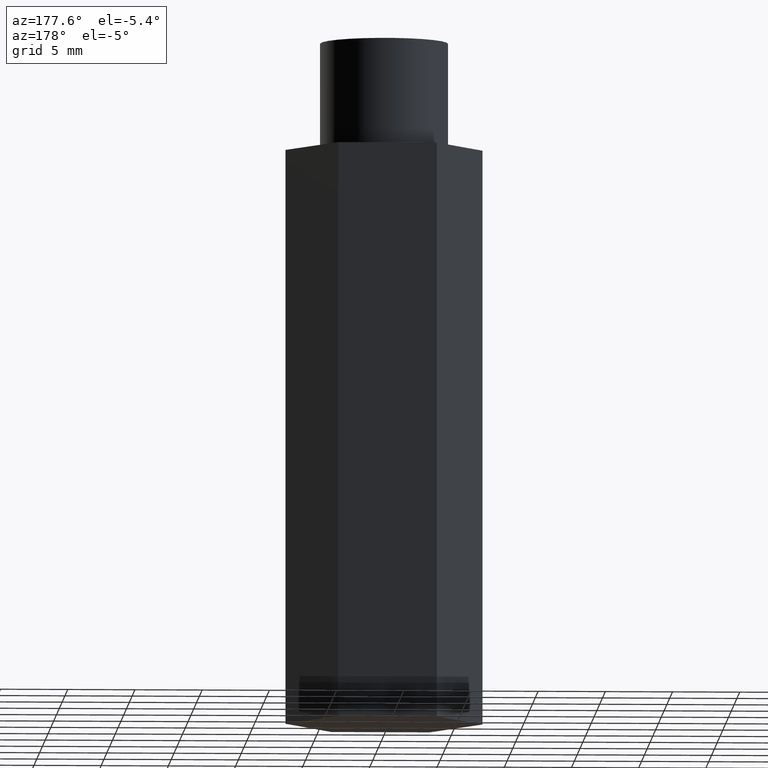
[diagram: clean part render]
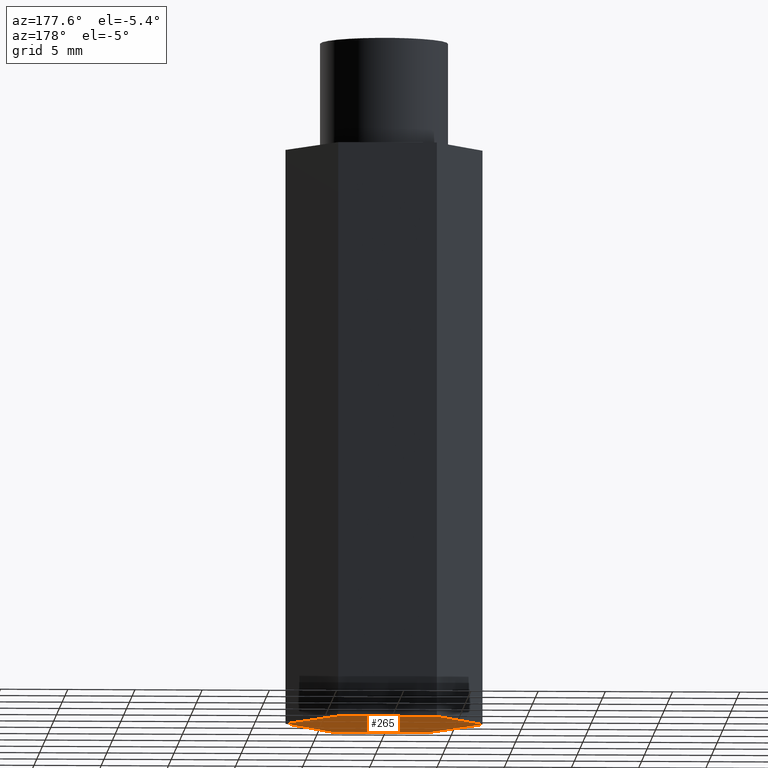
[diagram: same view with one face highlighted and labeled with its STEP entity id]
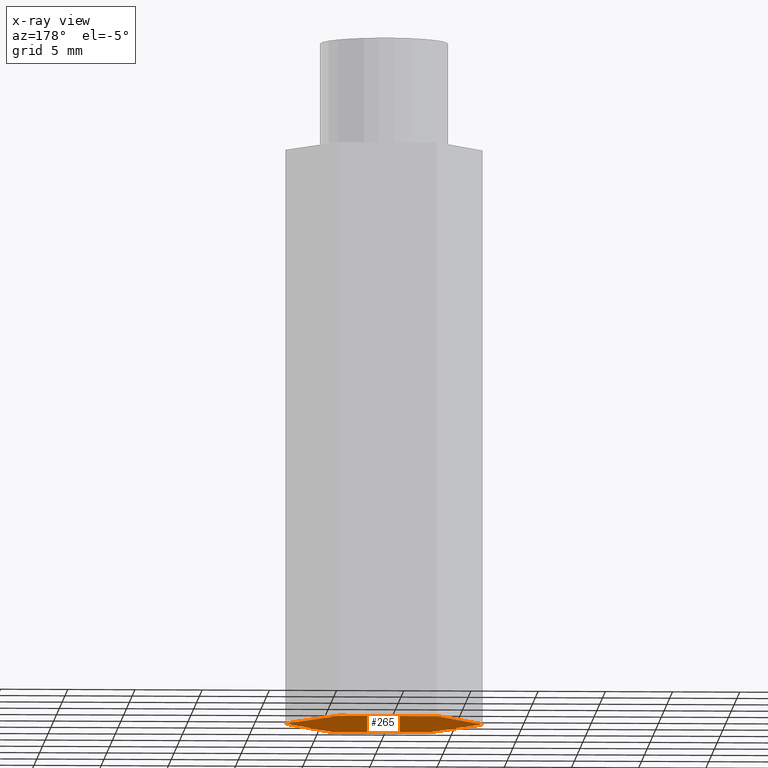
[diagram: x-ray of the same camera — body ghosted, the highlighted face saturated]
A machine part, auxiliary view. The second image highlights one B-rep face of the part: STEP entity #265.
The next image is the same camera in x-ray: the body ghosted, the highlighted face saturated — about 0% of this face is hidden behind the body in this view.
In plain terms, the highlighted planar face has unit normal (0, 0, 1).
Its self-contained STEP definition (entity closure, byte-faithful):
#9 = VERTEX_POINT ( 'NONE', #105 ) ;
#11 = EDGE_CURVE ( 'NONE', #209, #261, #54, .T. ) ;
#16 = VERTEX_POINT ( 'NONE', #102 ) ;
#30 = CARTESIAN_POINT ( 'NONE',  ( -0.2886751345948129200, 3.414809992080329000E-017, 0.0000000000000000000 ) ) ;
#42 = EDGE_CURVE ( 'NONE', #16, #80, #163, .T. ) ;
#50 = CARTESIAN_POINT ( 'NONE',  ( 0.1443375672974065200, -0.2500000000000000600, 0.0000000000000000000 ) ) ;
#54 = LINE ( 'NONE', #50, #111 ) ;
#58 = EDGE_LOOP ( 'NONE', ( #76, #132, #286, #260, #74, #200 ) ) ;
#59 = CARTESIAN_POINT ( 'NONE',  ( -0.2886751345948129200, 3.414809992080329000E-017, 0.0000000000000000000 ) ) ;
#63 = CARTESIAN_POINT ( 'NONE',  ( 0.2886751345948129200, -7.469896857675719000E-018, 0.0000000000000000000 ) ) ;
#74 = ORIENTED_EDGE ( 'NONE', *, *, #272, .F. ) ;
#76 = ORIENTED_EDGE ( 'NONE', *, *, #292, .F. ) ;
#80 = VERTEX_POINT ( 'NONE', #59 ) ;
#89 = DIRECTION ( 'NONE',  ( 1.000000000000000000, 2.365849761790803000E-016, 0.0000000000000000000 ) ) ;
#102 = CARTESIAN_POINT ( 'NONE',  ( -0.1443375672974064600, 0.2500000000000000600, 0.0000000000000000000 ) ) ;
#105 = CARTESIAN_POINT ( 'NONE',  ( -0.1443375672974062700, -0.2500000000000001100, 0.0000000000000000000 ) ) ;
#111 = VECTOR ( 'NONE', #320, 39.37007874015748900 ) ;
#113 = CARTESIAN_POINT ( 'NONE',  ( 0.1443375672974063800, 0.2500000000000000600, 0.0000000000000000000 ) ) ;
#114 = DIRECTION ( 'NONE',  ( 1.000000000000000000, 0.0000000000000000000, -0.0000000000000000000 ) ) ;
#117 = CARTESIAN_POINT ( 'NONE',  ( 0.1443375672974063800, 0.2500000000000000600, 0.0000000000000000000 ) ) ;
#119 = DIRECTION ( 'NONE',  ( 0.0000000000000000000, 0.0000000000000000000, 1.000000000000000000 ) ) ;
#125 = LINE ( 'NONE', #117, #340 ) ;
#132 = ORIENTED_EDGE ( 'NONE', *, *, #207, .F. ) ;
#146 = CARTESIAN_POINT ( 'NONE',  ( -0.1443375672974062700, -0.2500000000000001100, 0.0000000000000000000 ) ) ;
#163 = LINE ( 'NONE', #240, #236 ) ;
#183 = AXIS2_PLACEMENT_3D ( 'NONE', #336, #119, #114 ) ;
#194 = DIRECTION ( 'NONE',  ( 0.5000000000000003300, -0.8660254037844383700, 0.0000000000000000000 ) ) ;
#196 = CARTESIAN_POINT ( 'NONE',  ( 0.2886751345948129200, -7.469896857675719000E-018, 0.0000000000000000000 ) ) ;
#199 = VECTOR ( 'NONE', #194, 39.37007874015748100 ) ;
#200 = ORIENTED_EDGE ( 'NONE', *, *, #11, .F. ) ;
#203 = PLANE ( 'NONE',  #183 ) ;
#207 = EDGE_CURVE ( 'NONE', #80, #9, #329, .T. ) ;
#208 = LINE ( 'NONE', #196, #338 ) ;
#209 = VERTEX_POINT ( 'NONE', #299 ) ;
#215 = EDGE_CURVE ( 'NONE', #341, #16, #125, .T. ) ;
#227 = DIRECTION ( 'NONE',  ( -0.5000000000000002200, 0.8660254037844384900, 0.0000000000000000000 ) ) ;
#236 = VECTOR ( 'NONE', #324, 39.37007874015748900 ) ;
#240 = CARTESIAN_POINT ( 'NONE',  ( -0.1443375672974064600, 0.2500000000000000600, 0.0000000000000000000 ) ) ;
#244 = VECTOR ( 'NONE', #89, 39.37007874015748100 ) ;
#260 = ORIENTED_EDGE ( 'NONE', *, *, #215, .F. ) ;
#261 = VERTEX_POINT ( 'NONE', #63 ) ;
#265 = ADVANCED_FACE ( 'NONE', ( #321 ), #203, .F. ) ;
#272 = EDGE_CURVE ( 'NONE', #261, #341, #208, .T. ) ;
#286 = ORIENTED_EDGE ( 'NONE', *, *, #42, .F. ) ;
#292 = EDGE_CURVE ( 'NONE', #9, #209, #300, .T. ) ;
#299 = CARTESIAN_POINT ( 'NONE',  ( 0.1443375672974065200, -0.2500000000000000600, 0.0000000000000000000 ) ) ;
#300 = LINE ( 'NONE', #146, #244 ) ;
#308 = DIRECTION ( 'NONE',  ( -1.000000000000000000, -1.182924880895401300E-016, 0.0000000000000000000 ) ) ;
#320 = DIRECTION ( 'NONE',  ( 0.4999999999999998300, 0.8660254037844386000, 0.0000000000000000000 ) ) ;
#321 = FACE_OUTER_BOUND ( 'NONE', #58, .T. ) ;
#324 = DIRECTION ( 'NONE',  ( -0.5000000000000000000, -0.8660254037844386000, 0.0000000000000000000 ) ) ;
#329 = LINE ( 'NONE', #30, #199 ) ;
#336 = CARTESIAN_POINT ( 'NONE',  ( 0.1443375672974065200, -0.2500000000000000600, 0.0000000000000000000 ) ) ;
#338 = VECTOR ( 'NONE', #227, 39.37007874015749600 ) ;
#340 = VECTOR ( 'NONE', #308, 39.37007874015748100 ) ;
#341 = VERTEX_POINT ( 'NONE', #113 ) ;